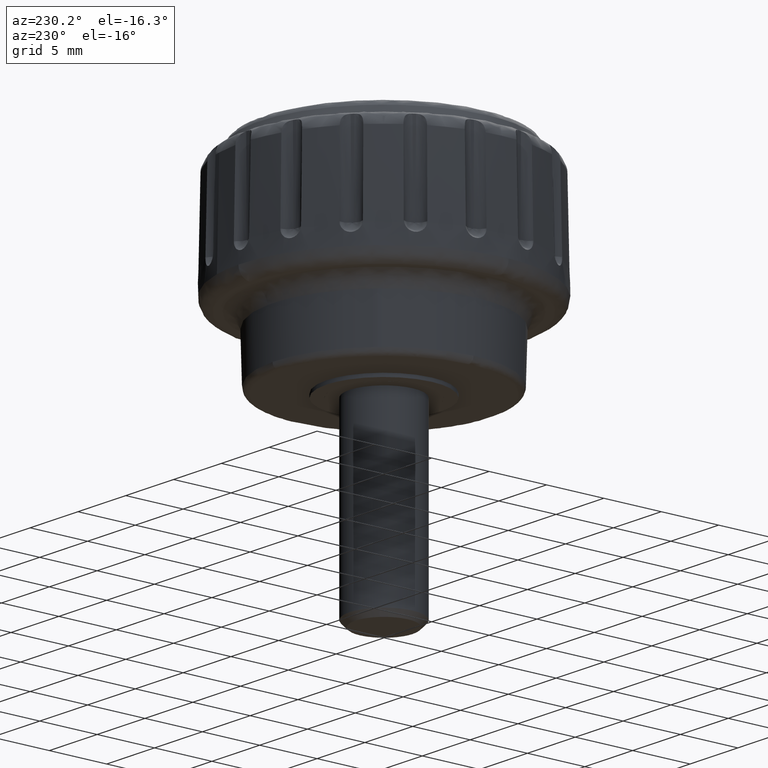
[diagram: clean part render]
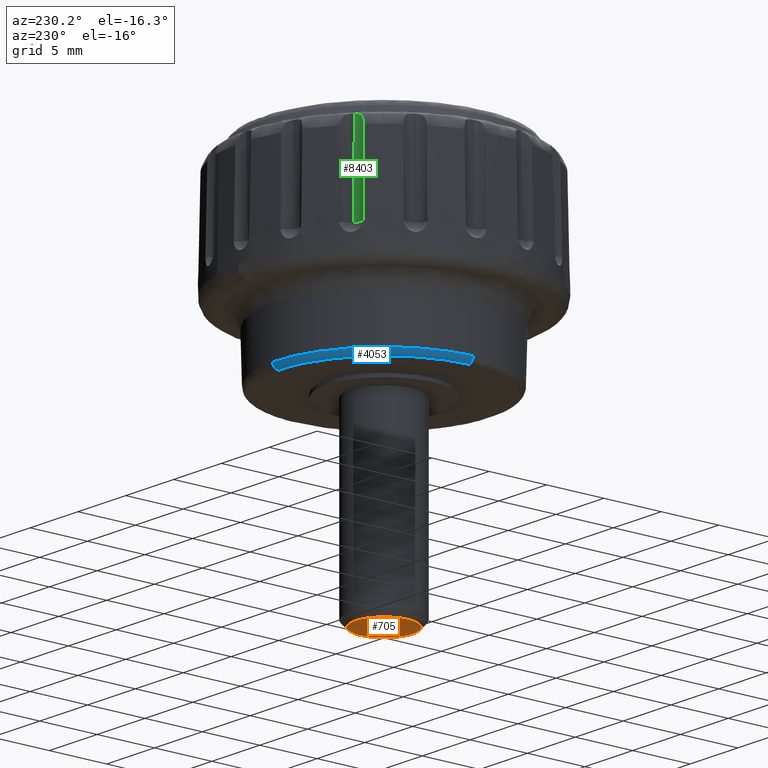
[diagram: same view with three faces highlighted in distinct colors, each labeled with its STEP entity id]
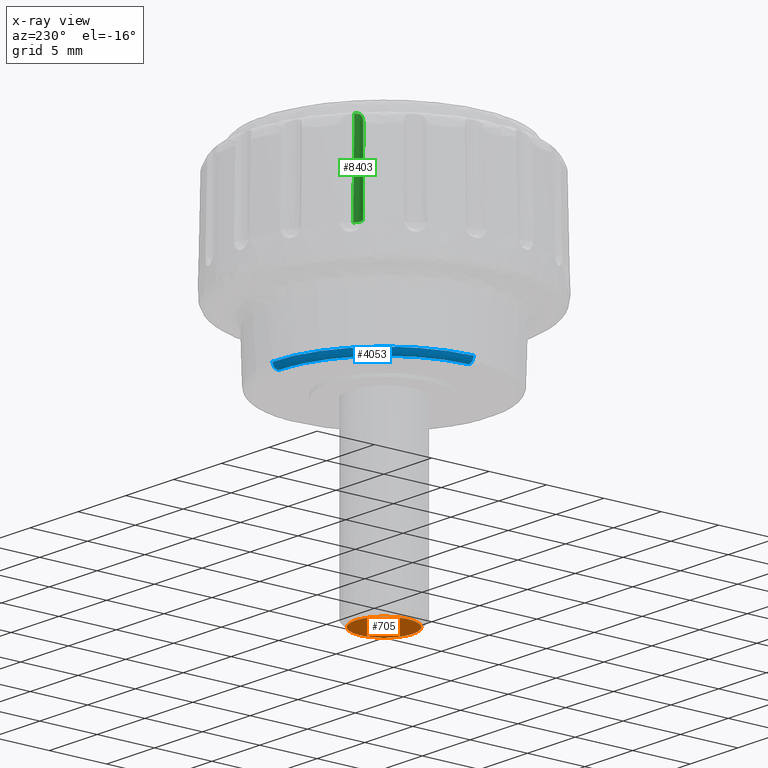
[diagram: x-ray of the same camera — body ghosted, the three highlighted faces saturated]
A machine part, auxiliary view with three faces highlighted in distinct colors.
The next image is the same camera in x-ray (body ghosted, the three faces saturated) — at least one of them is partly hidden behind the body in this view.
Their STEP definitions:

[orange] entity #705 — the highlighted face is a freeform B-spline surface patch.
#538=CARTESIAN_POINT('',(-1.743579904530501,1.791627352009433,-16.000000036438500));
#539=VERTEX_POINT('',#538);
#545=CARTESIAN_POINT('',(-2.500000000000000,0.0,-16.0));
#546=VERTEX_POINT('',#545);
#547=CARTESIAN_POINT('',(-2.500000000000000,0.0,-16.0));
#548=CARTESIAN_POINT('',(-2.500006414684432,0.135244980761665,-16.000000002750639));
#549=CARTESIAN_POINT('',(-2.475472946232512,0.436950891693475,-16.000000008886818));
#550=CARTESIAN_POINT('',(-2.369793116953822,0.830775860608055,-16.000000016896479));
#551=CARTESIAN_POINT('',(-2.198068310082950,1.210728651505030,-16.000000024624079));
#552=CARTESIAN_POINT('',(-1.999515375022182,1.517607077609584,-16.000000030865380));
#553=CARTESIAN_POINT('',(-1.825593668025141,1.711816805534434,-16.000000034815368));
#554=CARTESIAN_POINT('',(-1.743579904530501,1.791627352009433,-16.000000036438500));
#555=B_SPLINE_CURVE_WITH_KNOTS('',3,(#547,#548,#549,#550,#551,#552,#553,#554),.UNSPECIFIED.,.F.,.U.,(4,1,1,1,1,4),(6.502616E-009,0.405738817993991,0.905115475775369,1.217215711750638,1.654168219067697,1.997484058718441),.UNSPECIFIED.);
#556=EDGE_CURVE('',#546,#539,#555,.T.);
#558=CARTESIAN_POINT('',(-0.000000291624933,-2.499999999999983,-16.0));
#559=VERTEX_POINT('',#558);
#560=CARTESIAN_POINT('',(-0.000000291624933,-2.499999999999983,-16.0));
#561=CARTESIAN_POINT('',(-0.214766485211105,-2.500073185542431,-15.999999999999980));
#562=CARTESIAN_POINT('',(-0.521520677754035,-2.460203995623299,-16.000000000000011));
#563=CARTESIAN_POINT('',(-0.979536585783941,-2.312024135967538,-15.999999999999970));
#564=CARTESIAN_POINT('',(-1.345771293976033,-2.124850646363593,-16.000000000000082));
#565=CARTESIAN_POINT('',(-1.742274544764681,-1.815416153146166,-15.999999999999920));
#566=CARTESIAN_POINT('',(-2.064871724988242,-1.441463635830571,-15.999999999999959));
#567=CARTESIAN_POINT('',(-2.287810895998238,-1.036339793342619,-16.000000000000082));
#568=CARTESIAN_POINT('',(-2.454115791153732,-0.562421037844478,-15.999999999999920));
#569=CARTESIAN_POINT('',(-2.500084041799430,-0.224993719287866,-16.000000000000050));
#570=CARTESIAN_POINT('',(-2.500000000000000,0.0,-16.0));
#571=B_SPLINE_CURVE_WITH_KNOTS('',3,(#560,#561,#562,#563,#564,#565,#566,#567,#568,#569,#570),.UNSPECIFIED.,.F.,.U.,(4,1,1,1,1,1,1,1,4),(0.000000022895579,0.644272043298145,0.920393559663965,1.441956061773007,1.871479930102314,2.423697519478633,2.914581230674163,3.252063260244066,3.927015292822655),.UNSPECIFIED.);
#572=EDGE_CURVE('',#559,#546,#571,.T.);
#574=CARTESIAN_POINT('',(2.500000000000000,0.0,-16.0));
#575=VERTEX_POINT('',#574);
#576=CARTESIAN_POINT('',(2.500000000000000,0.0,-16.0));
#577=CARTESIAN_POINT('',(2.500058209842156,-0.214763334347323,-16.000000000000028));
#578=CARTESIAN_POINT('',(2.454907304753249,-0.562426872124606,-15.999999999999959));
#579=CARTESIAN_POINT('',(2.281665209892397,-1.056139114409101,-16.000000000000028));
#580=CARTESIAN_POINT('',(2.056261498451297,-1.448406469194851,-16.000000000000039));
#581=CARTESIAN_POINT('',(1.754554003174007,-1.798147498800631,-15.999999999999959));
#582=CARTESIAN_POINT('',(1.389581426457781,-2.097702842526415,-16.0));
#583=CARTESIAN_POINT('',(0.954022413931369,-2.330522116697873,-15.999999999999989));
#584=CARTESIAN_POINT('',(0.470415036192878,-2.470735904699654,-15.999999999999780));
#585=CARTESIAN_POINT('',(0.153395841900399,-2.500015274532565,-16.000000000000298));
#586=CARTESIAN_POINT('',(-0.000000291624933,-2.499999999999983,-16.0));
#587=B_SPLINE_CURVE_WITH_KNOTS('',3,(#576,#577,#578,#579,#580,#581,#582,#583,#584,#585,#586),.UNSPECIFIED.,.F.,.U.,(4,1,1,1,1,1,1,1,4),(0.000000022793622,0.644272097158613,1.043113676336255,1.564671881683234,1.994181087501483,2.423697722376584,2.975941968455305,3.466825720745567,3.927015621553987),.UNSPECIFIED.);
#588=EDGE_CURVE('',#575,#559,#587,.T.);
#590=CARTESIAN_POINT('',(1.688975592835875,1.843193422560425,-15.999999963686751));
#591=VERTEX_POINT('',#590);
#592=CARTESIAN_POINT('',(1.688975592835875,1.843193422560425,-15.999999963686751));
#593=CARTESIAN_POINT('',(1.824299459882517,1.719240252600990,-15.999999966128771));
#594=CARTESIAN_POINT('',(2.031663434577399,1.482197259910865,-15.999999970798861));
#595=CARTESIAN_POINT('',(2.289442892328904,1.043423451186767,-15.999999979443279));
#596=CARTESIAN_POINT('',(2.458222501058722,0.561315333396209,-15.999999988941241));
#597=CARTESIAN_POINT('',(2.500031900944161,0.183511326305483,-15.999999996384741));
#598=CARTESIAN_POINT('',(2.500000000000000,0.0,-16.0));
#599=B_SPLINE_CURVE_WITH_KNOTS('',3,(#592,#593,#594,#595,#596,#597,#598),.UNSPECIFIED.,.F.,.U.,(4,1,1,1,4),(6.238699E-009,0.550532670899131,0.939149065286521,1.522060356891299,2.072593021549112),.UNSPECIFIED.);
#600=EDGE_CURVE('',#591,#575,#599,.T.);
#632=CARTESIAN_POINT('',(0.000000291624964,2.499999999999983,-16.0));
#633=VERTEX_POINT('',#632);
#634=CARTESIAN_POINT('',(0.000000291624964,2.499999999999983,-16.0));
#635=CARTESIAN_POINT('',(0.260792205034034,2.500136959608577,-15.999999994392921));
#636=CARTESIAN_POINT('',(0.704997434017396,2.429834246840954,-15.999999984842461));
#637=CARTESIAN_POINT('',(1.272048322008652,2.174477796315587,-15.999999972650730));
#638=CARTESIAN_POINT('',(1.560814906830205,1.960665008456933,-15.999999966442241));
#639=CARTESIAN_POINT('',(1.688975592835875,1.843193422560425,-15.999999963686751));
#640=B_SPLINE_CURVE_WITH_KNOTS('',3,(#634,#635,#636,#637,#638,#639),.UNSPECIFIED.,.F.,.U.,(4,1,1,4),(6.508969E-009,0.782335829324009,1.332865931854498,1.854422457891356),.UNSPECIFIED.);
#641=EDGE_CURVE('',#633,#591,#640,.T.);
#643=CARTESIAN_POINT('',(-1.743579904530501,1.791627352009433,-16.000000036438500));
#644=CARTESIAN_POINT('',(-1.592370616541966,1.938855060830428,-16.000000033278400));
#645=CARTESIAN_POINT('',(-1.260474116960487,2.188566005895756,-16.000000026342281));
#646=CARTESIAN_POINT('',(-0.663234390277624,2.439630698692320,-16.000000013860721));
#647=CARTESIAN_POINT('',(-0.231150342293547,2.500087473121259,-16.000000004830749));
#648=CARTESIAN_POINT('',(0.000000291624964,2.499999999999983,-16.0));
#649=B_SPLINE_CURVE_WITH_KNOTS('',3,(#643,#644,#645,#646,#647,#648),.UNSPECIFIED.,.F.,.U.,(4,1,1,4),(6.658816E-009,0.633128011468583,1.236103677499198,1.929531626113099),.UNSPECIFIED.);
#650=EDGE_CURVE('',#539,#633,#649,.T.);
#692=CARTESIAN_POINT('',(2.749749990309030,-2.749749990309011,-16.0));
#693=CARTESIAN_POINT('',(-2.749750124419481,-2.749749990309011,-16.0));
#694=CARTESIAN_POINT('',(2.749749990309030,2.749750124419462,-16.0));
#695=CARTESIAN_POINT('',(-2.749750124419481,2.749750124419462,-16.0));
#696=B_SPLINE_SURFACE_WITH_KNOTS('',1,1,((#692,#694),(#693,#695)),.UNSPECIFIED.,.F.,.F.,.U.,(2,2),(2,2),(0.0,5.499500114728511),(0.0,5.499500114728473),.UNSPECIFIED.);
#697=ORIENTED_EDGE('',*,*,#556,.T.);
#698=ORIENTED_EDGE('',*,*,#650,.T.);
#699=ORIENTED_EDGE('',*,*,#641,.T.);
#700=ORIENTED_EDGE('',*,*,#600,.T.);
#701=ORIENTED_EDGE('',*,*,#588,.T.);
#702=ORIENTED_EDGE('',*,*,#572,.T.);
#703=EDGE_LOOP('',(#697,#698,#699,#700,#701,#702));
#704=FACE_OUTER_BOUND('',#703,.T.);
#705=ADVANCED_FACE('',(#704),#696,.T.);

[blue] entity #4053 — the highlighted face is a freeform B-spline surface patch.
#1535=CARTESIAN_POINT('',(0.239056302376872,9.509745252401981,0.786914354403101));
#1536=VERTEX_POINT('',#1535);
#1554=CARTESIAN_POINT('',(-7.013426641497079,6.426621089463209,0.786989040111408));
#1555=VERTEX_POINT('',#1554);
#1556=CARTESIAN_POINT('',(-7.013426641497079,6.426621089463209,0.786989040111408));
#1557=CARTESIAN_POINT('',(-6.598927994669058,6.879115508838654,0.786982709317885));
#1558=CARTESIAN_POINT('',(-5.919067806726210,7.490205240139704,0.786973304074193));
#1559=CARTESIAN_POINT('',(-4.914951662999282,8.160772006614497,0.786961144631640));
#1560=CARTESIAN_POINT('',(-4.132224953304448,8.583711314644949,0.786952410921171));
#1561=CARTESIAN_POINT('',(-3.176995635173586,8.989813777030911,0.786942573851922));
#1562=CARTESIAN_POINT('',(-2.199948537689449,9.276250728971245,0.786933474568047));
#1563=CARTESIAN_POINT('',(-1.010449362411552,9.482546400128493,0.786923459825601));
#1564=CARTESIAN_POINT('',(-0.247469682797535,9.522012544274967,0.786917729204855));
#1565=CARTESIAN_POINT('',(0.239056302376872,9.509745252401981,0.786914354403101));
#1566=B_SPLINE_CURVE_WITH_KNOTS('',3,(#1556,#1557,#1558,#1559,#1560,#1561,#1562,#1563,#1564,#1565),.UNSPECIFIED.,.F.,.U.,(4,1,1,1,1,1,1,4),(2.561926E-009,1.840917165930764,2.729639078553154,3.618358732805548,4.507071228369623,5.840151620235698,6.665392562838221,8.125429641166571),.UNSPECIFIED.);
#1567=EDGE_CURVE('',#1555,#1536,#1566,.T.);
#1656=CARTESIAN_POINT('',(-9.511251129716865,0.119528245787760,0.787059724340032));
#1657=VERTEX_POINT('',#1656);
#1691=CARTESIAN_POINT('',(-9.511251129716865,0.119528245787760,0.787059724340032));
#1692=CARTESIAN_POINT('',(-9.503879916478484,0.715580232066695,0.787054815256292));
#1693=CARTESIAN_POINT('',(-9.391934701088859,1.761922622044476,0.787045430888299));
#1694=CARTESIAN_POINT('',(-9.003135218055393,3.157520111552816,0.787031059556948));
#1695=CARTESIAN_POINT('',(-8.524697076066136,4.271776877474059,0.787018284246996));
#1696=CARTESIAN_POINT('',(-7.889686089374129,5.367571564133816,0.787004446730235));
#1697=CARTESIAN_POINT('',(-7.355125561302945,6.053721349162948,0.786994721701414));
#1698=CARTESIAN_POINT('',(-7.013426641497079,6.426621089463209,0.786989040111408));
#1699=B_SPLINE_CURVE_WITH_KNOTS('',3,(#1691,#1692,#1693,#1694,#1695,#1696,#1697,#1698),.UNSPECIFIED.,.F.,.U.,(4,1,1,1,1,4),(3.641534E-009,1.788283195258902,3.143047808198256,4.335231165174367,5.419039364136958,6.936370352068977),.UNSPECIFIED.);
#1700=EDGE_CURVE('',#1657,#1555,#1699,.T.);
#3867=CARTESIAN_POINT('',(-9.013663081773444,0.113302225684569,0.300012387994850));
#3868=VERTEX_POINT('',#3867);
#3869=CARTESIAN_POINT('',(-9.511251129716865,0.119528245787760,0.787059724340032));
#3870=CARTESIAN_POINT('',(-9.509967834778001,0.119858292887523,0.730870355089099));
#3871=CARTESIAN_POINT('',(-9.488887457655247,0.120144390267908,0.622962841255554));
#3872=CARTESIAN_POINT('',(-9.418404846237612,0.119606194823672,0.499419876715248));
#3873=CARTESIAN_POINT('',(-9.325557355559479,0.118472698927677,0.404055592503619));
#3874=CARTESIAN_POINT('',(-9.198200692280453,0.116594064757496,0.324647039647852));
#3875=CARTESIAN_POINT('',(-9.081909067001137,0.114576736535898,0.300057138280823));
#3876=CARTESIAN_POINT('',(-9.013663081773444,0.113302225684569,0.300012387994850));
#3877=B_SPLINE_CURVE_WITH_KNOTS('',3,(#3869,#3870,#3871,#3872,#3873,#3874,#3875,#3876),.UNSPECIFIED.,.F.,.U.,(4,1,1,1,1,4),(0.000000056665133,0.168609091509535,0.325179133733763,0.421515744342262,0.566045901756221,0.770786548484455),.UNSPECIFIED.);
#3878=EDGE_CURVE('',#1657,#3868,#3877,.T.);
#3970=CARTESIAN_POINT('',(0.226495541120300,9.010073674901324,0.300003000000261));
#3971=VERTEX_POINT('',#3970);
#3990=CARTESIAN_POINT('',(0.239056302376872,9.509745252401981,0.786914354403101));
#3991=CARTESIAN_POINT('',(0.239022549557044,9.508402553151123,0.734636971794977));
#3992=CARTESIAN_POINT('',(0.238630271815035,9.492797604202144,0.650563523847408));
#3993=CARTESIAN_POINT('',(0.237299251230728,9.439849129068934,0.537026210664497));
#3994=CARTESIAN_POINT('',(0.235627466053691,9.373344916498565,0.450178087804683));
#3995=CARTESIAN_POINT('',(0.233584761896633,9.292085414174224,0.383398866374420));
#3996=CARTESIAN_POINT('',(0.230638618175749,9.174886762716156,0.320125698248006));
#3997=CARTESIAN_POINT('',(0.228214451028095,9.078452526124121,0.299913537804257));
#3998=CARTESIAN_POINT('',(0.226495541120300,9.010073674901324,0.300003000000261));
#3999=B_SPLINE_CURVE_WITH_KNOTS('',3,(#3990,#3991,#3992,#3993,#3994,#3995,#3996,#3997,#3998),.UNSPECIFIED.,.F.,.U.,(4,1,1,1,1,1,4),(0.000000056645336,0.156877090188705,0.253424038596675,0.374103849404587,0.482703388261715,0.567177559582420,0.772327533352217),.UNSPECIFIED.);
#4000=EDGE_CURVE('',#1536,#3971,#3999,.T.);
#4005=CARTESIAN_POINT('',(-9.514134021008587,0.053239026488144,0.821295242057273));
#4006=CARTESIAN_POINT('',(-9.511808059045075,0.145766625718118,0.821295242057272));
#4007=CARTESIAN_POINT('',(-9.270413908160840,9.748512328318073,0.821295242057272));
#4008=CARTESIAN_POINT('',(0.272918913931378,9.508611700462144,0.821295242057272));
#4009=CARTESIAN_POINT('',(0.306688829198080,9.507762791173727,0.821295242057272));
#4010=CARTESIAN_POINT('',(-9.537947093438175,0.053372279266699,0.262704399083624));
#4011=CARTESIAN_POINT('',(-9.535615309788685,0.146131467248454,0.262704399083624));
#4012=CARTESIAN_POINT('',(-9.293616969770012,9.772912029819276,0.262704399083624));
#4013=CARTESIAN_POINT('',(0.273602006880300,9.532410950990672,0.262704399083624));
#4014=CARTESIAN_POINT('',(0.307456445387521,9.531559916954137,0.262704399083624));
#4015=CARTESIAN_POINT('',(-8.980077422126421,0.050250561815346,0.301188908995942));
#4016=CARTESIAN_POINT('',(-8.977882023315861,0.137584312100331,0.301188908995942));
#4017=CARTESIAN_POINT('',(-8.750038043043755,9.201299378960187,0.301188908995942));
#4018=CARTESIAN_POINT('',(0.257599164743174,8.974865085833141,0.301188908995942));
#4019=CARTESIAN_POINT('',(0.289473474371775,8.974063828344283,0.301188908995942));
#4027=(BOUNDED_SURFACE()B_SPLINE_SURFACE(2,2,((#4005,#4010,#4015),(#4006,#4011,#4016),(#4007,#4012,#4017),(#4008,#4013,#4018),(#4009,#4014,#4019)),.UNSPECIFIED.,.F.,.F.,.U.)B_SPLINE_SURFACE_WITH_KNOTS((3,1,1,3),(3,3),(0.0,0.219535760287492,15.980307558771020,16.059811574708139),(0.0,0.894599288389270),.UNSPECIFIED.)GEOMETRIC_REPRESENTATION_ITEM()RATIONAL_B_SPLINE_SURFACE(((0.923344311644463,0.613944928704912,0.918644782167881),(0.919607755510080,0.611460438725827,0.914927243918239),(0.647618735772012,0.430611022938333,0.644322561961262),(0.917224378548279,0.609875697063983,0.912555997588689),(0.918577557720861,0.610775445381223,0.913902289508781)))REPRESENTATION_ITEM('')SURFACE());
#4028=ORIENTED_EDGE('',*,*,#1700,.T.);
#4029=ORIENTED_EDGE('',*,*,#1567,.T.);
#4030=ORIENTED_EDGE('',*,*,#4000,.T.);
#4031=CARTESIAN_POINT('',(-9.013663081773444,0.113302225684569,0.300012387994850));
#4032=CARTESIAN_POINT('',(-9.009185062818460,0.466346899475933,0.300012206401217));
#4033=CARTESIAN_POINT('',(-8.957331421435690,1.190470776117927,0.300011811443111));
#4034=CARTESIAN_POINT('',(-8.712179392628372,2.451542370562725,0.300011041984038));
#4035=CARTESIAN_POINT('',(-8.306345299295559,3.574901289696889,0.300010257728911));
#4036=CARTESIAN_POINT('',(-7.745072981189556,4.645753192925044,0.300009418185216));
#4037=CARTESIAN_POINT('',(-7.184809521615375,5.480807203291080,0.300008698882686));
#4038=CARTESIAN_POINT('',(-6.526034599853587,6.240049873282507,0.300007966133797));
#4039=CARTESIAN_POINT('',(-5.793931643798095,6.927705501416572,0.300007231070363));
#4040=CARTESIAN_POINT('',(-5.065248686807552,7.476915593018827,0.300006568095614));
#4041=CARTESIAN_POINT('',(-4.042783303731541,8.086573539210763,0.300005719554201));
#4042=CARTESIAN_POINT('',(-2.979449585128935,8.542024338148496,0.300004927754997));
#4043=CARTESIAN_POINT('',(-1.898994498789800,8.825039854887146,0.300004214471146));
#4044=CARTESIAN_POINT('',(-0.889362028769964,8.988375626708811,0.300003599282844));
#4045=CARTESIAN_POINT('',(-0.219351138080168,9.021316522802978,0.300003229337671));
#4046=CARTESIAN_POINT('',(0.226495541120300,9.010073674901324,0.300003000000261));
#4047=B_SPLINE_CURVE_WITH_KNOTS('',3,(#4031,#4032,#4033,#4034,#4035,#4036,#4037,#4038,#4039,#4040,#4041,#4042,#4043,#4044,#4045,#4046),.UNSPECIFIED.,.F.,.U.,(4,1,1,1,1,1,1,1,1,1,1,1,1,4),(0.000000013577983,1.059220241782063,2.174189952450004,3.846653797249587,4.627135010883379,5.797861699210134,6.857080585396698,7.637549305530346,8.808276426777079,9.588757363040347,11.205470313824760,12.264697382858371,12.933680209735710,14.271641224997770),.UNSPECIFIED.);
#4048=EDGE_CURVE('',#3868,#3971,#4047,.T.);
#4049=ORIENTED_EDGE('',*,*,#4048,.F.);
#4050=ORIENTED_EDGE('',*,*,#3878,.F.);
#4051=EDGE_LOOP('',(#4028,#4029,#4030,#4049,#4050));
#4052=FACE_OUTER_BOUND('',#4051,.T.);
#4053=ADVANCED_FACE('',(#4052),#4027,.T.);

[green] entity #8403 — the highlighted face is a freeform B-spline surface patch.
#3201=CARTESIAN_POINT('',(-8.506986193708739,8.893653852737300,15.524289876473100));
#3202=VERTEX_POINT('',#3201);
#3210=CARTESIAN_POINT('',(-8.594688259653919,8.998173104905339,8.800002999999810));
#3211=VERTEX_POINT('',#3210);
#3212=CARTESIAN_POINT('',(-8.594688259653919,8.998173104905339,8.800002999999810));
#3213=CARTESIAN_POINT('',(-8.506986193708739,8.893653852737300,15.524289876473100));
#3214=QUASI_UNIFORM_CURVE('',1,(#3212,#3213),.UNSPECIFIED.,.F.,.U.);
#3215=EDGE_CURVE('',#3211,#3202,#3214,.T.);
#4619=CARTESIAN_POINT('',(-7.748463240651150,9.032610179411140,16.400364117337599));
#4620=VERTEX_POINT('',#4619);
#4626=CARTESIAN_POINT('',(-7.748463240651130,9.032610179411160,16.400364117337599));
#4627=CARTESIAN_POINT('',(-7.791227552484925,8.996726661123869,16.399828393956909));
#4628=CARTESIAN_POINT('',(-7.836629646305802,8.966178108128011,16.393970564865100));
#4629=CARTESIAN_POINT('',(-7.908272856386453,8.927802216616295,16.376831468272460));
#4630=CARTESIAN_POINT('',(-7.932823081186593,8.916258269723505,16.369646716176231));
#4631=CARTESIAN_POINT('',(-7.981425796743173,8.896271698821543,16.352686474205971));
#4632=CARTESIAN_POINT('',(-8.005668501290055,8.887717052022049,16.342874288419281));
#4633=CARTESIAN_POINT('',(-8.053877755291953,8.873211090193106,16.320433887607422));
#4634=CARTESIAN_POINT('',(-8.077995965578722,8.867233121992680,16.307711572584491));
#4635=CARTESIAN_POINT('',(-8.125019316440524,8.857803548548329,16.279624840757378));
#4636=CARTESIAN_POINT('',(-8.147773114651157,8.854362553209828,16.264373108260969));
#4637=CARTESIAN_POINT('',(-8.191696732849946,8.849545533249630,16.231436317713921));
#4638=CARTESIAN_POINT('',(-8.212866295279541,8.848171050638284,16.213750677826901));
#4639=CARTESIAN_POINT('',(-8.253523219921991,8.847077163622780,16.175878208810399));
#4640=CARTESIAN_POINT('',(-8.272861454302429,8.847367219245873,16.155809118573188));
#4641=CARTESIAN_POINT('',(-8.309018922824963,8.849126336216688,16.114104184054121));
#4642=CARTESIAN_POINT('',(-8.325938446466017,8.850593223988604,16.092376694210621));
#4643=CARTESIAN_POINT('',(-8.357549437533267,8.854283763787361,16.047217969913671));
#4644=CARTESIAN_POINT('',(-8.372300882899003,8.856519668920218,16.023675052252500));
#4645=CARTESIAN_POINT('',(-8.412828125290455,8.863751601523990,15.951357352452201));
#4646=CARTESIAN_POINT('',(-8.434775190913566,8.869186940151602,15.901287818296010));
#4647=CARTESIAN_POINT('',(-8.461200180184489,8.876658496773880,15.823665248984600));
#4648=CARTESIAN_POINT('',(-8.468916223759610,8.879044464830351,15.797368541759800));
#4649=CARTESIAN_POINT('',(-8.482244536432457,8.883422199406326,15.743943129673699));
#4650=CARTESIAN_POINT('',(-8.487865397928228,8.885418055306822,15.716732451575179));
#4651=CARTESIAN_POINT('',(-8.501450504110196,8.890533201004100,15.634901959451780));
#4652=CARTESIAN_POINT('',(-8.506261599137936,8.892790314554423,15.579844652783640));
#4653=CARTESIAN_POINT('',(-8.506986193708739,8.893653852737300,15.524289876473100));
#4654=B_SPLINE_CURVE_WITH_KNOTS('',3,(#4626,#4627,#4628,#4629,#4630,#4631,#4632,#4633,#4634,#4635,#4636,#4637,#4638,#4639,#4640,#4641,#4642,#4643,#4644,#4645,#4646,#4647,#4648,#4649,#4650,#4651,#4652,#4653),.UNSPECIFIED.,.F.,.U.,(4,2,2,2,2,2,2,2,2,2,2,2,2,4),(0.0,0.124999999999994,0.187499999999993,0.249999999999992,0.312499999999991,0.374999999999989,0.437499999999988,0.499999999999987,0.562499999999985,0.624999999999984,0.749999999999987,0.812499999999988,0.874999999999990,1.0),.UNSPECIFIED.);
#4655=EDGE_CURVE('',#4620,#3202,#4654,.T.);
#8341=CARTESIAN_POINT('',(-7.688651355740740,9.082798309979490,8.805733710091390));
#8342=VERTEX_POINT('',#8341);
#8343=CARTESIAN_POINT('',(-8.594688259653919,8.998173104905339,8.800002999999810));
#8344=CARTESIAN_POINT('',(-8.524377664271560,8.958623797182895,8.800220748960975));
#8345=CARTESIAN_POINT('',(-8.400300464478507,8.911915381788313,8.800718623047516));
#8346=CARTESIAN_POINT('',(-8.209133401096471,8.889866642602389,8.801731367781402));
#8347=CARTESIAN_POINT('',(-8.037366428635664,8.905899391684889,8.802817747047293));
#8348=CARTESIAN_POINT('',(-7.854347365169410,8.966562832528375,8.804189779098646));
#8349=CARTESIAN_POINT('',(-7.742705370066502,9.037410761417986,8.805193284401735));
#8350=CARTESIAN_POINT('',(-7.688651355740740,9.082798309979490,8.805733710091390));
#8351=B_SPLINE_CURVE_WITH_KNOTS('',3,(#8343,#8344,#8345,#8346,#8347,#8348,#8349,#8350),.UNSPECIFIED.,.F.,.U.,(4,1,1,1,1,4),(0.000000031964935,0.241997276516512,0.393251432904934,0.574737609231344,0.756241723116345,0.967989010171683),.UNSPECIFIED.);
#8352=EDGE_CURVE('',#3211,#8342,#8351,.T.);
#8371=CARTESIAN_POINT('',(-8.495077940567319,8.879462149274197,16.437294547870142));
#8372=CARTESIAN_POINT('',(-8.528281056119868,8.919032081630315,13.891622866938169));
#8373=CARTESIAN_POINT('',(-8.561484878415381,8.958602856014609,11.345828856094810));
#8374=CARTESIAN_POINT('',(-8.594688259654049,8.998173104905238,8.800002999999810));
#8375=CARTESIAN_POINT('',(-8.080640101935257,8.753880697622025,16.440431891934651));
#8376=CARTESIAN_POINT('',(-8.085348945828853,8.749929508460358,13.894150822216684));
#8377=CARTESIAN_POINT('',(-8.096077160411705,8.740927467549826,11.347799259346166));
#8378=CARTESIAN_POINT('',(-8.112401326105692,8.727229866134875,8.801498297712293));
#8379=CARTESIAN_POINT('',(-7.748927519874535,9.032220602886042,16.446170015067519));
#8380=CARTESIAN_POINT('',(-7.723075360492456,9.053913140288564,13.899451326093880));
#8381=CARTESIAN_POINT('',(-7.703588029484811,9.070264952549897,11.352607337270371));
#8382=CARTESIAN_POINT('',(-7.688649786393199,9.082799626818433,8.805733708062075));
#8390=(BOUNDED_SURFACE()B_SPLINE_SURFACE(3,2,((#8371,#8375,#8379),(#8372,#8376,#8380),(#8373,#8377,#8381),(#8374,#8378,#8382)),.UNSPECIFIED.,.F.,.F.,.U.)B_SPLINE_SURFACE_WITH_KNOTS((4,4),(3,3),(0.0,7.721365348327016),(0.0,1.0),.UNSPECIFIED.)GEOMETRIC_REPRESENTATION_ITEM()RATIONAL_B_SPLINE_SURFACE(((1.0,0.879418671319682,1.0),(1.0,0.861062463799025,1.0),(1.0,0.842135236060395,1.0),(1.0,0.822510399759748,1.0)))REPRESENTATION_ITEM('')SURFACE());
#8391=ORIENTED_EDGE('',*,*,#4655,.F.);
#8392=CARTESIAN_POINT('',(-7.688651355740740,9.082798309979490,8.805733710091390));
#8393=CARTESIAN_POINT('',(-7.703499534052828,9.070339209034161,11.337340997536330));
#8394=CARTESIAN_POINT('',(-7.722844261475673,9.054107055388423,13.868903114757140));
#8395=CARTESIAN_POINT('',(-7.748463240651150,9.032610179411140,16.400364117337599));
#8396=QUASI_UNIFORM_CURVE('',3,(#8392,#8393,#8394,#8395),.UNSPECIFIED.,.F.,.U.);
#8397=EDGE_CURVE('',#8342,#4620,#8396,.T.);
#8398=ORIENTED_EDGE('',*,*,#8397,.F.);
#8399=ORIENTED_EDGE('',*,*,#8352,.F.);
#8400=ORIENTED_EDGE('',*,*,#3215,.T.);
#8401=EDGE_LOOP('',(#8391,#8398,#8399,#8400));
#8402=FACE_OUTER_BOUND('',#8401,.T.);
#8403=ADVANCED_FACE('',(#8402),#8390,.F.);